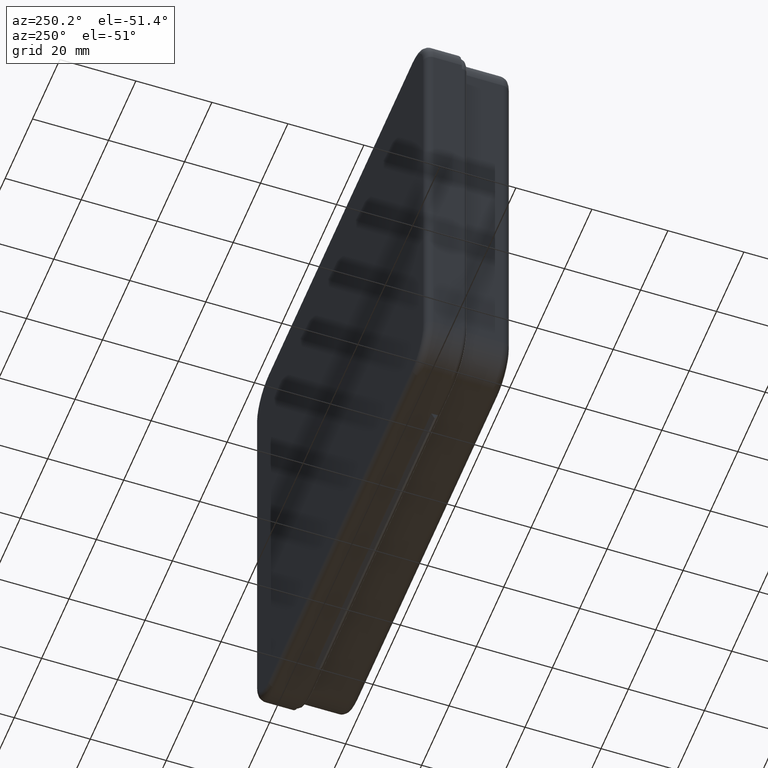
[diagram: clean part render]
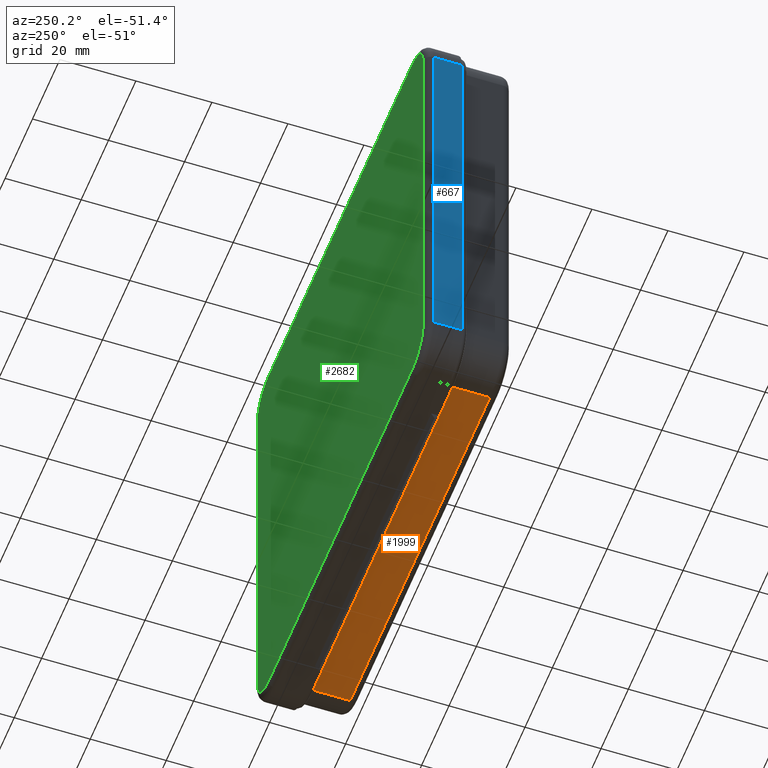
[diagram: same view with three faces highlighted in distinct colors, each labeled with its STEP entity id]
A machine part, auxiliary view with three faces highlighted in distinct colors.
Their STEP definitions:

[orange] entity #1999 — the highlighted planar face has unit normal (0, 0, 1).
#28 = EDGE_CURVE ( 'NONE', #3108, #2416, #2235, .T. ) ;
#41 = CARTESIAN_POINT ( 'NONE',  ( -61.00000000000000000, 17.50000000000000000, -61.00000000000000000 ) ) ;
#207 = DIRECTION ( 'NONE',  ( -1.000000000000000000, 0.0000000000000000000, 0.0000000000000000000 ) ) ;
#586 = ORIENTED_EDGE ( 'NONE', *, *, #1605, .T. ) ;
#828 = VECTOR ( 'NONE', #4233, 1000.000000000000000 ) ;
#1417 = CARTESIAN_POINT ( 'NONE',  ( 50.99999999999997868, 12.00000000000000178, -61.00000000000000000 ) ) ;
#1605 = EDGE_CURVE ( 'NONE', #3957, #1811, #1916, .T. ) ;
#1649 = ORIENTED_EDGE ( 'NONE', *, *, #3709, .F. ) ;
#1811 = VERTEX_POINT ( 'NONE', #3472 ) ;
#1916 = LINE ( 'NONE', #3253, #2331 ) ;
#1970 = LINE ( 'NONE', #2289, #2233 ) ;
#1999 = ADVANCED_FACE ( 'NONE', ( #3418 ), #3686, .F. ) ;
#2177 = CARTESIAN_POINT ( 'NONE',  ( 50.99999999999997868, 12.00000000000000178, -61.00000000000000000 ) ) ;
#2210 = CARTESIAN_POINT ( 'NONE',  ( -51.00000000000000000, 17.50000000000000000, -61.00000000000000000 ) ) ;
#2233 = VECTOR ( 'NONE', #3976, 1000.000000000000000 ) ;
#2235 = LINE ( 'NONE', #2210, #828 ) ;
#2238 = VECTOR ( 'NONE', #207, 1000.000000000000000 ) ;
#2289 = CARTESIAN_POINT ( 'NONE',  ( -61.00000000000000000, 2.000000000000000000, -61.00000000000000000 ) ) ;
#2331 = VECTOR ( 'NONE', #4074, 1000.000000000000000 ) ;
#2408 = DIRECTION ( 'NONE',  ( 1.000000000000000000, 0.0000000000000000000, -0.0000000000000000000 ) ) ;
#2416 = VERTEX_POINT ( 'NONE', #3241 ) ;
#2867 = ORIENTED_EDGE ( 'NONE', *, *, #28, .T. ) ;
#2878 = LINE ( 'NONE', #2177, #2238 ) ;
#2960 = ORIENTED_EDGE ( 'NONE', *, *, #3401, .T. ) ;
#3108 = VERTEX_POINT ( 'NONE', #4088 ) ;
#3241 = CARTESIAN_POINT ( 'NONE',  ( -51.00000000000000000, 12.00000000000000178, -61.00000000000000000 ) ) ;
#3253 = CARTESIAN_POINT ( 'NONE',  ( 51.00000000000000711, 17.50000000000000000, -61.00000000000000000 ) ) ;
#3401 = EDGE_CURVE ( 'NONE', #1811, #3108, #1970, .T. ) ;
#3418 = FACE_OUTER_BOUND ( 'NONE', #3812, .T. ) ;
#3472 = CARTESIAN_POINT ( 'NONE',  ( 51.00000000000000711, 2.000000000000000000, -61.00000000000000000 ) ) ;
#3686 = PLANE ( 'NONE',  #4222 ) ;
#3706 = DIRECTION ( 'NONE',  ( 0.0000000000000000000, 0.0000000000000000000, 1.000000000000000000 ) ) ;
#3709 = EDGE_CURVE ( 'NONE', #3957, #2416, #2878, .T. ) ;
#3812 = EDGE_LOOP ( 'NONE', ( #586, #2960, #2867, #1649 ) ) ;
#3957 = VERTEX_POINT ( 'NONE', #1417 ) ;
#3976 = DIRECTION ( 'NONE',  ( -1.000000000000000000, 0.0000000000000000000, 0.0000000000000000000 ) ) ;
#4074 = DIRECTION ( 'NONE',  ( 0.0000000000000000000, -1.000000000000000000, 0.0000000000000000000 ) ) ;
#4088 = CARTESIAN_POINT ( 'NONE',  ( -51.00000000000000000, 2.000000000000000000, -61.00000000000000000 ) ) ;
#4222 = AXIS2_PLACEMENT_3D ( 'NONE', #41, #3706, #2408 ) ;
#4233 = DIRECTION ( 'NONE',  ( -0.0000000000000000000, 1.000000000000000000, -0.0000000000000000000 ) ) ;

[blue] entity #667 — the highlighted planar face has unit normal (1, 0, -0).
#44 = VERTEX_POINT ( 'NONE', #3230 ) ;
#53 = EDGE_CURVE ( 'NONE', #1156, #3790, #589, .T. ) ;
#112 = ORIENTED_EDGE ( 'NONE', *, *, #2841, .T. ) ;
#149 = ORIENTED_EDGE ( 'NONE', *, *, #272, .T. ) ;
#214 = EDGE_CURVE ( 'NONE', #2318, #1156, #4221, .T. ) ;
#242 = CARTESIAN_POINT ( 'NONE',  ( -62.49999999999998579, 9.499999999999998224, 52.50000000000000711 ) ) ;
#272 = EDGE_CURVE ( 'NONE', #3790, #44, #4242, .T. ) ;
#589 = LINE ( 'NONE', #242, #3145 ) ;
#600 = PLANE ( 'NONE',  #3064 ) ;
#667 = ADVANCED_FACE ( 'NONE', ( #3975 ), #600, .F. ) ;
#825 = VECTOR ( 'NONE', #4200, 1000.000000000000000 ) ;
#1156 = VERTEX_POINT ( 'NONE', #2243 ) ;
#1230 = DIRECTION ( 'NONE',  ( 2.220446049250313081E-16, 0.0000000000000000000, 1.000000000000000000 ) ) ;
#1285 = CARTESIAN_POINT ( 'NONE',  ( -62.49999999999998579, 7.500000000000000000, 52.50000000000000711 ) ) ;
#1516 = ORIENTED_EDGE ( 'NONE', *, *, #214, .T. ) ;
#1534 = DIRECTION ( 'NONE',  ( 0.0000000000000000000, -1.000000000000000000, 0.0000000000000000000 ) ) ;
#1640 = DIRECTION ( 'NONE',  ( 1.000000000000000000, 0.0000000000000000000, -2.220446049250313081E-16 ) ) ;
#1744 = EDGE_LOOP ( 'NONE', ( #4230, #149, #112, #1516 ) ) ;
#1862 = CARTESIAN_POINT ( 'NONE',  ( -62.50000000000001421, 9.499999999999998224, -52.49999999999998579 ) ) ;
#2243 = CARTESIAN_POINT ( 'NONE',  ( -62.49999999999998579, 0.0000000000000000000, 52.50000000000000711 ) ) ;
#2318 = VERTEX_POINT ( 'NONE', #4259 ) ;
#2611 = CARTESIAN_POINT ( 'NONE',  ( -62.50000000000001421, 0.0000000000000000000, -62.49999999999998579 ) ) ;
#2735 = VECTOR ( 'NONE', #1534, 1000.000000000000000 ) ;
#2836 = LINE ( 'NONE', #1862, #2735 ) ;
#2841 = EDGE_CURVE ( 'NONE', #44, #2318, #2836, .T. ) ;
#2858 = CARTESIAN_POINT ( 'NONE',  ( -62.50000000000001421, 7.500000000000000000, -52.49999999999998579 ) ) ;
#2968 = CARTESIAN_POINT ( 'NONE',  ( -62.50000000000001421, 9.499999999999998224, -62.49999999999998579 ) ) ;
#3064 = AXIS2_PLACEMENT_3D ( 'NONE', #2968, #1640, #4019 ) ;
#3145 = VECTOR ( 'NONE', #4189, 1000.000000000000000 ) ;
#3230 = CARTESIAN_POINT ( 'NONE',  ( -62.50000000000001421, 7.500000000000000000, -52.49999999999998579 ) ) ;
#3489 = VECTOR ( 'NONE', #1230, 1000.000000000000000 ) ;
#3790 = VERTEX_POINT ( 'NONE', #1285 ) ;
#3975 = FACE_OUTER_BOUND ( 'NONE', #1744, .T. ) ;
#4019 = DIRECTION ( 'NONE',  ( -2.220446049250313081E-16, 0.0000000000000000000, -1.000000000000000000 ) ) ;
#4189 = DIRECTION ( 'NONE',  ( -0.0000000000000000000, 1.000000000000000000, -0.0000000000000000000 ) ) ;
#4200 = DIRECTION ( 'NONE',  ( -2.220446049250313081E-16, -0.0000000000000000000, -1.000000000000000000 ) ) ;
#4221 = LINE ( 'NONE', #2611, #3489 ) ;
#4230 = ORIENTED_EDGE ( 'NONE', *, *, #53, .T. ) ;
#4242 = LINE ( 'NONE', #2858, #825 ) ;
#4259 = CARTESIAN_POINT ( 'NONE',  ( -62.50000000000001421, 0.0000000000000000000, -52.49999999999998579 ) ) ;

[green] entity #2682 — the highlighted planar face has unit normal (0, 1, 0).
#6 = EDGE_LOOP ( 'NONE', ( #1810, #1325, #991, #3172, #641, #1597, #4040, #3192 ) ) ;
#7 = AXIS2_PLACEMENT_3D ( 'NONE', #3143, #2170, #1521 ) ;
#97 = VECTOR ( 'NONE', #340, 1000.000000000000000 ) ;
#107 = CARTESIAN_POINT ( 'NONE',  ( 60.50000000000001421, 9.499999999999998224, 52.50000000000000711 ) ) ;
#111 = EDGE_CURVE ( 'NONE', #2877, #1485, #3655, .T. ) ;
#118 = CARTESIAN_POINT ( 'NONE',  ( 52.49999999999997868, 9.499999999999998224, -60.49999999999998579 ) ) ;
#128 = VECTOR ( 'NONE', #3685, 1000.000000000000000 ) ;
#265 = EDGE_CURVE ( 'NONE', #1685, #3175, #1113, .T. ) ;
#340 = DIRECTION ( 'NONE',  ( 2.220446049250313081E-16, -0.0000000000000000000, 1.000000000000000000 ) ) ;
#351 = EDGE_CURVE ( 'NONE', #1920, #854, #3417, .T. ) ;
#420 = CARTESIAN_POINT ( 'NONE',  ( -52.50000000000001421, 9.499999999999998224, -60.49999999999998579 ) ) ;
#583 = VECTOR ( 'NONE', #663, 1000.000000000000000 ) ;
#639 = LINE ( 'NONE', #898, #583 ) ;
#641 = ORIENTED_EDGE ( 'NONE', *, *, #351, .T. ) ;
#654 = CARTESIAN_POINT ( 'NONE',  ( -52.49999999999998579, 9.499999999999998224, 52.50000000000001421 ) ) ;
#663 = DIRECTION ( 'NONE',  ( -1.000000000000000000, 0.0000000000000000000, 0.0000000000000000000 ) ) ;
#835 = CIRCLE ( 'NONE', #2451, 8.000000000000000000 ) ;
#854 = VERTEX_POINT ( 'NONE', #1020 ) ;
#898 = CARTESIAN_POINT ( 'NONE',  ( -52.50000000000001421, 9.499999999999998224, -60.49999999999998579 ) ) ;
#978 = AXIS2_PLACEMENT_3D ( 'NONE', #2033, #1335, #2360 ) ;
#979 = LINE ( 'NONE', #3932, #97 ) ;
#991 = ORIENTED_EDGE ( 'NONE', *, *, #111, .T. ) ;
#1020 = CARTESIAN_POINT ( 'NONE',  ( 60.49999999999998579, 9.499999999999998224, -52.49999999999998579 ) ) ;
#1038 = VECTOR ( 'NONE', #2355, 1000.000000000000000 ) ;
#1113 = CIRCLE ( 'NONE', #3627, 8.000000000000000000 ) ;
#1207 = DIRECTION ( 'NONE',  ( 0.0000000000000000000, 1.000000000000000000, 0.0000000000000000000 ) ) ;
#1244 = CARTESIAN_POINT ( 'NONE',  ( -60.50000000000001421, 9.499999999999998224, -52.49999999999998579 ) ) ;
#1289 = DIRECTION ( 'NONE',  ( 0.0000000000000000000, 0.0000000000000000000, 1.000000000000000000 ) ) ;
#1325 = ORIENTED_EDGE ( 'NONE', *, *, #3385, .T. ) ;
#1335 = DIRECTION ( 'NONE',  ( 0.0000000000000000000, 1.000000000000000000, 0.0000000000000000000 ) ) ;
#1402 = CARTESIAN_POINT ( 'NONE',  ( 60.49999999999998579, 9.499999999999998224, -52.49999999999998579 ) ) ;
#1445 = VERTEX_POINT ( 'NONE', #118 ) ;
#1485 = VERTEX_POINT ( 'NONE', #3322 ) ;
#1521 = DIRECTION ( 'NONE',  ( 0.0000000000000000000, -0.0000000000000000000, 1.000000000000000000 ) ) ;
#1597 = ORIENTED_EDGE ( 'NONE', *, *, #3429, .T. ) ;
#1645 = CARTESIAN_POINT ( 'NONE',  ( -60.49999999999998579, 9.499999999999998224, 52.50000000000000711 ) ) ;
#1685 = VERTEX_POINT ( 'NONE', #420 ) ;
#1810 = ORIENTED_EDGE ( 'NONE', *, *, #3365, .T. ) ;
#1920 = VERTEX_POINT ( 'NONE', #107 ) ;
#2033 = CARTESIAN_POINT ( 'NONE',  ( 52.49999999999997868, 9.499999999999998224, -52.49999999999998579 ) ) ;
#2092 = EDGE_CURVE ( 'NONE', #1485, #1920, #3759, .T. ) ;
#2170 = DIRECTION ( 'NONE',  ( 0.0000000000000000000, 1.000000000000000000, 0.0000000000000000000 ) ) ;
#2202 = DIRECTION ( 'NONE',  ( 0.0000000000000000000, 1.000000000000000000, 0.0000000000000000000 ) ) ;
#2220 = CARTESIAN_POINT ( 'NONE',  ( -52.50000000000001421, 9.499999999999998224, -52.49999999999998579 ) ) ;
#2355 = DIRECTION ( 'NONE',  ( 1.000000000000000000, -0.0000000000000000000, 0.0000000000000000000 ) ) ;
#2360 = DIRECTION ( 'NONE',  ( 0.0000000000000000000, 0.0000000000000000000, 1.000000000000000000 ) ) ;
#2451 = AXIS2_PLACEMENT_3D ( 'NONE', #654, #2636, #4328 ) ;
#2636 = DIRECTION ( 'NONE',  ( 0.0000000000000000000, 1.000000000000000000, 0.0000000000000000000 ) ) ;
#2682 = ADVANCED_FACE ( 'NONE', ( #4166 ), #4145, .T. ) ;
#2877 = VERTEX_POINT ( 'NONE', #4006 ) ;
#2928 = VERTEX_POINT ( 'NONE', #1645 ) ;
#3143 = CARTESIAN_POINT ( 'NONE',  ( 0.0000000000000000000, 9.499999999999998224, 0.0000000000000000000 ) ) ;
#3172 = ORIENTED_EDGE ( 'NONE', *, *, #2092, .T. ) ;
#3175 = VERTEX_POINT ( 'NONE', #1244 ) ;
#3192 = ORIENTED_EDGE ( 'NONE', *, *, #265, .T. ) ;
#3203 = AXIS2_PLACEMENT_3D ( 'NONE', #3219, #1207, #4159 ) ;
#3219 = CARTESIAN_POINT ( 'NONE',  ( 52.50000000000001421, 9.499999999999998224, 52.50000000000000711 ) ) ;
#3322 = CARTESIAN_POINT ( 'NONE',  ( 52.50000000000000711, 9.499999999999998224, 60.50000000000001421 ) ) ;
#3365 = EDGE_CURVE ( 'NONE', #3175, #2928, #979, .T. ) ;
#3385 = EDGE_CURVE ( 'NONE', #2928, #2877, #835, .T. ) ;
#3417 = LINE ( 'NONE', #1402, #128 ) ;
#3429 = EDGE_CURVE ( 'NONE', #854, #1445, #3500, .T. ) ;
#3500 = CIRCLE ( 'NONE', #978, 8.000000000000000000 ) ;
#3627 = AXIS2_PLACEMENT_3D ( 'NONE', #2220, #2202, #1289 ) ;
#3655 = LINE ( 'NONE', #4322, #1038 ) ;
#3685 = DIRECTION ( 'NONE',  ( -2.220446049250313081E-16, 0.0000000000000000000, -1.000000000000000000 ) ) ;
#3759 = CIRCLE ( 'NONE', #3203, 8.000000000000000000 ) ;
#3932 = CARTESIAN_POINT ( 'NONE',  ( -60.49999999999998579, 9.499999999999998224, 52.50000000000000711 ) ) ;
#4006 = CARTESIAN_POINT ( 'NONE',  ( -52.49999999999998579, 9.499999999999998224, 60.50000000000001421 ) ) ;
#4040 = ORIENTED_EDGE ( 'NONE', *, *, #4187, .T. ) ;
#4145 = PLANE ( 'NONE',  #7 ) ;
#4159 = DIRECTION ( 'NONE',  ( 0.0000000000000000000, 0.0000000000000000000, 1.000000000000000000 ) ) ;
#4166 = FACE_OUTER_BOUND ( 'NONE', #6, .T. ) ;
#4187 = EDGE_CURVE ( 'NONE', #1445, #1685, #639, .T. ) ;
#4322 = CARTESIAN_POINT ( 'NONE',  ( 52.50000000000000711, 9.499999999999998224, 60.50000000000001421 ) ) ;
#4328 = DIRECTION ( 'NONE',  ( 0.0000000000000000000, 0.0000000000000000000, 1.000000000000000000 ) ) ;